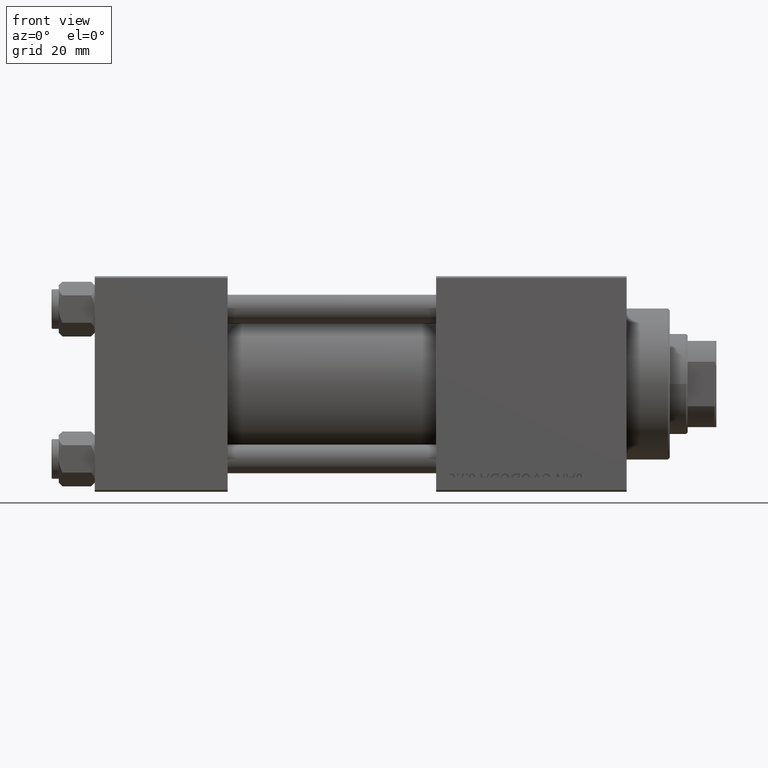
[diagram: clean part render]
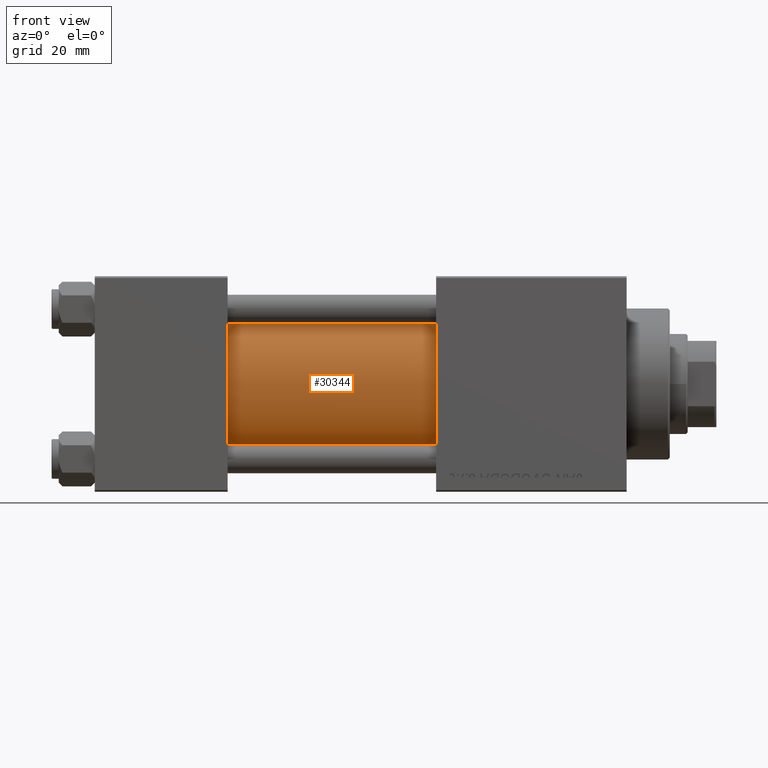
[diagram: same view with one face highlighted and labeled with its STEP entity id]
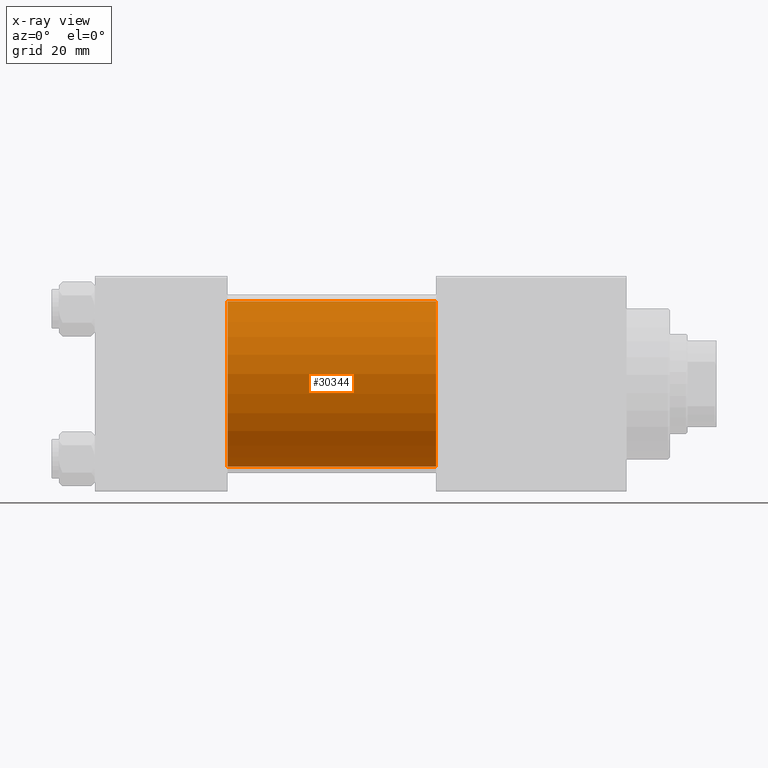
[diagram: x-ray of the same camera — body ghosted, the highlighted face saturated]
A machine part, front view. The second image highlights one B-rep face of the part: STEP entity #30344.
The next image is the same camera in x-ray: the body ghosted, the highlighted face saturated — about 1% of this face is hidden behind the body in this view.
In plain terms, the highlighted cylindrical surface (partial cylindrical patch) has radius 23 mm, axis along (-1, -0, -0).
Its self-contained STEP definition (entity closure, byte-faithful):
#1159 = CARTESIAN_POINT ( 'NONE',  ( 37.00000000000000000, -2.602085213965210642E-15, 23.00000000000000000 ) ) ;
#1815 = DIRECTION ( 'NONE',  ( 0.000000000000000000, 0.000000000000000000, 1.000000000000000000 ) ) ;
#2237 = DIRECTION ( 'NONE',  ( -1.000000000000000000, -0.000000000000000000, -0.000000000000000000 ) ) ;
#2497 = CARTESIAN_POINT ( 'NONE',  ( 95.00000000000000000, 2.146024240737012665E-16, -23.00000000000000000 ) ) ;
#4568 = EDGE_CURVE ( 'NONE', #29713, #13890, #48700, .T. ) ;
#6106 = CIRCLE ( 'NONE', #29628, 23.00000000000000000 ) ;
#9250 = DIRECTION ( 'NONE',  ( -1.000000000000000000, -0.000000000000000000, -0.000000000000000000 ) ) ;
#9517 = DIRECTION ( 'NONE',  ( 0.000000000000000000, 0.000000000000000000, 1.000000000000000000 ) ) ;
#12727 = DIRECTION ( 'NONE',  ( 1.000000000000000000, -0.000000000000000000, 0.000000000000000000 ) ) ;
#13890 = VERTEX_POINT ( 'NONE', #27855 ) ;
#15612 = CARTESIAN_POINT ( 'NONE',  ( 95.00000000000000000, -2.602085213965210642E-15, 0.000000000000000000 ) ) ;
#19932 = DIRECTION ( 'NONE',  ( 0.000000000000000000, 0.000000000000000000, -1.000000000000000000 ) ) ;
#21271 = LINE ( 'NONE', #48436, #43293 ) ;
#22175 = ORIENTED_EDGE ( 'NONE', *, *, #39527, .T. ) ;
#23240 = DIRECTION ( 'NONE',  ( 1.000000000000000000, 0.000000000000000000, 0.000000000000000000 ) ) ;
#27855 = CARTESIAN_POINT ( 'NONE',  ( 37.00000000000000000, 2.146024240737012665E-16, -23.00000000000000000 ) ) ;
#28532 = CARTESIAN_POINT ( 'NONE',  ( 95.00000000000000000, -2.602085213965210642E-15, 0.000000000000000000 ) ) ;
#29628 = AXIS2_PLACEMENT_3D ( 'NONE', #36588, #12727, #1815 ) ;
#29713 = VERTEX_POINT ( 'NONE', #30040 ) ;
#30040 = CARTESIAN_POINT ( 'NONE',  ( 95.00000000000000000, 2.146024240737012665E-16, -23.00000000000000000 ) ) ;
#30340 = AXIS2_PLACEMENT_3D ( 'NONE', #15612, #23240, #19932 ) ;
#30344 = ADVANCED_FACE ( 'NONE', ( #48593 ), #47826, .T. ) ;
#31552 = ORIENTED_EDGE ( 'NONE', *, *, #37011, .F. ) ;
#36015 = CIRCLE ( 'NONE', #30340, 23.00000000000000000 ) ;
#36040 = ORIENTED_EDGE ( 'NONE', *, *, #4568, .F. ) ;
#36588 = CARTESIAN_POINT ( 'NONE',  ( 37.00000000000000000, -2.602085213965210642E-15, 0.000000000000000000 ) ) ;
#37011 = EDGE_CURVE ( 'NONE', #39973, #29713, #36015, .T. ) ;
#37584 = EDGE_CURVE ( 'NONE', #39973, #46126, #21271, .T. ) ;
#39034 = ORIENTED_EDGE ( 'NONE', *, *, #37584, .T. ) ;
#39448 = EDGE_LOOP ( 'NONE', ( #36040, #31552, #39034, #22175 ) ) ;
#39527 = EDGE_CURVE ( 'NONE', #46126, #13890, #6106, .T. ) ;
#39973 = VERTEX_POINT ( 'NONE', #48217 ) ;
#40664 = AXIS2_PLACEMENT_3D ( 'NONE', #28532, #9250, #9517 ) ;
#40831 = DIRECTION ( 'NONE',  ( -1.000000000000000000, -0.000000000000000000, -0.000000000000000000 ) ) ;
#41512 = VECTOR ( 'NONE', #40831, 1000.000000000000000 ) ;
#43293 = VECTOR ( 'NONE', #2237, 1000.000000000000000 ) ;
#46126 = VERTEX_POINT ( 'NONE', #1159 ) ;
#47826 = CYLINDRICAL_SURFACE ( 'NONE', #40664, 23.00000000000000000 ) ;
#48217 = CARTESIAN_POINT ( 'NONE',  ( 95.00000000000000000, -2.602085213965210642E-15, 23.00000000000000000 ) ) ;
#48436 = CARTESIAN_POINT ( 'NONE',  ( 95.00000000000000000, -2.602085213965210642E-15, 23.00000000000000000 ) ) ;
#48593 = FACE_OUTER_BOUND ( 'NONE', #39448, .T. ) ;
#48700 = LINE ( 'NONE', #2497, #41512 ) ;